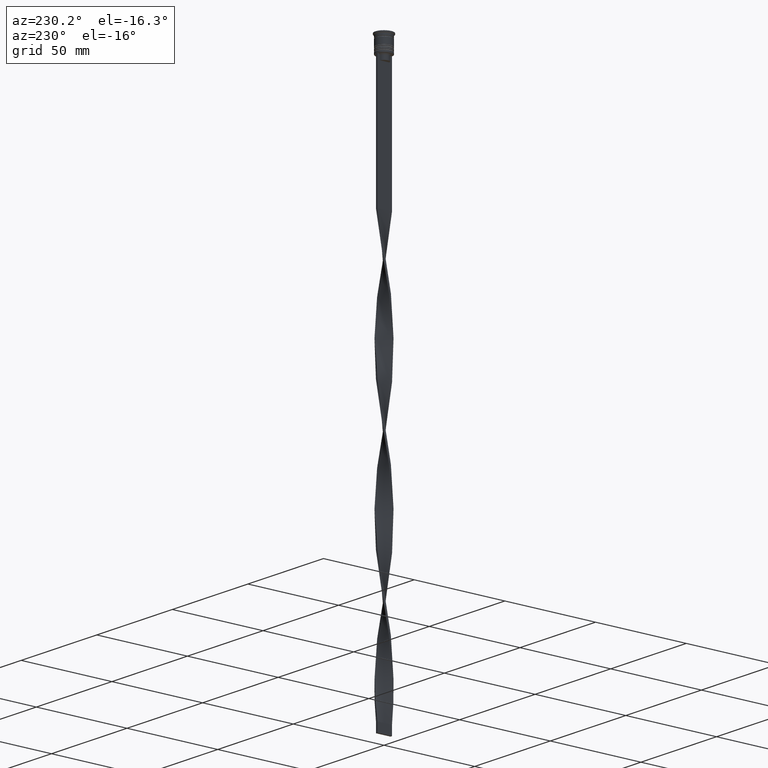
[diagram: clean part render]
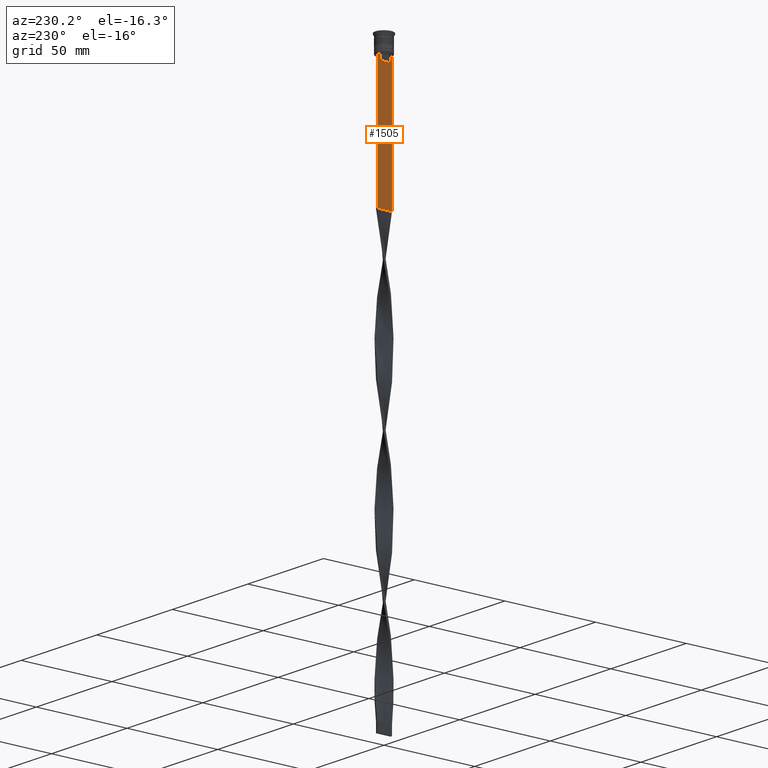
[diagram: same view with one face highlighted and labeled with its STEP entity id]
A machine part, auxiliary view. The second image highlights one B-rep face of the part: STEP entity #1505.
In plain terms, the highlighted planar face has unit normal (-1, 0, 0).
Its self-contained STEP definition (entity closure, byte-faithful):
#30 = B_SPLINE_CURVE_WITH_KNOTS ( 'NONE', 3,
 ( #3575, #568, #2971, #220 ),
 .UNSPECIFIED., .F., .F.,
 ( 4, 4 ),
 ( 0.005378271293598281544, 0.006090816219556000749 ),
 .UNSPECIFIED. ) ;
#66 = EDGE_CURVE ( 'NONE', #527, #2932, #1552, .T. ) ;
#120 = VECTOR ( 'NONE', #2645, 1000.000000000000000 ) ;
#171 = VECTOR ( 'NONE', #515, 1000.000000000000000 ) ;
#177 = CARTESIAN_POINT ( 'NONE',  ( -0.5000000000000000000, 2.602402735934616906, 0.000000000000000000 ) ) ;
#220 = CARTESIAN_POINT ( 'NONE',  ( -0.5000000000000000000, 2.602402735934616906, -10.00000000000000178 ) ) ;
#257 = ORIENTED_EDGE ( 'NONE', *, *, #2436, .F. ) ;
#471 = EDGE_CURVE ( 'NONE', #2932, #1119, #1212, .T. ) ;
#512 = CARTESIAN_POINT ( 'NONE',  ( -0.5000000000000000000, -2.602402735934616906, -10.00000000000000178 ) ) ;
#515 = DIRECTION ( 'NONE',  ( 0.000000000000000000, -1.000000000000000000, 0.000000000000000000 ) ) ;
#527 = VERTEX_POINT ( 'NONE', #665 ) ;
#568 = CARTESIAN_POINT ( 'NONE',  ( -0.5000000000000000000, 2.941047749529104749, -9.666873766989334982 ) ) ;
#665 = CARTESIAN_POINT ( 'NONE',  ( -0.5000000000000000000, -2.602402735934616906, -12.50000000000000000 ) ) ;
#761 = VERTEX_POINT ( 'NONE', #1804 ) ;
#822 = CARTESIAN_POINT ( 'NONE',  ( -0.5000000000000000000, -2.941045828809988549, -9.666875663357577864 ) ) ;
#913 = EDGE_CURVE ( 'NONE', #1697, #2857, #1912, .T. ) ;
#955 = ORIENTED_EDGE ( 'NONE', *, *, #913, .F. ) ;
#999 = AXIS2_PLACEMENT_3D ( 'NONE', #2732, #1525, #1589 ) ;
#1054 = DIRECTION ( 'NONE',  ( 0.000000000000000000, 0.000000000000000000, -1.000000000000000000 ) ) ;
#1058 = CARTESIAN_POINT ( 'NONE',  ( -0.5000000000000000000, -4.000000000000000000, -9.500000000000000000 ) ) ;
#1103 = LINE ( 'NONE', #2716, #2927 ) ;
#1119 = VERTEX_POINT ( 'NONE', #3231 ) ;
#1132 = VECTOR ( 'NONE', #3326, 1000.000000000000000 ) ;
#1212 = B_SPLINE_CURVE_WITH_KNOTS ( 'NONE', 3,
 ( #512, #2348, #822, #3207 ),
 .UNSPECIFIED., .F., .F.,
 ( 4, 4 ),
 ( 0.01295151922336848505, 0.01367164596165163643 ),
 .UNSPECIFIED. ) ;
#1259 = DIRECTION ( 'NONE',  ( 0.000000000000000000, -1.000000000000000000, 0.000000000000000000 ) ) ;
#1427 = CARTESIAN_POINT ( 'NONE',  ( -0.5000000000000000000, 2.649999999999995914, -12.50000000000000000 ) ) ;
#1429 = ORIENTED_EDGE ( 'NONE', *, *, #3871, .F. ) ;
#1505 = ADVANCED_FACE ( 'NONE', ( #2470 ), #3696, .T. ) ;
#1525 = DIRECTION ( 'NONE',  ( -1.000000000000000000, 0.000000000000000000, 0.000000000000000000 ) ) ;
#1536 = CARTESIAN_POINT ( 'NONE',  ( -0.5000000000000000000, 4.000000000000000000, -1.437742251701450202 ) ) ;
#1552 = LINE ( 'NONE', #2647, #3176 ) ;
#1589 = DIRECTION ( 'NONE',  ( 0.000000000000000000, 0.000000000000000000, 1.000000000000000000 ) ) ;
#1663 = ORIENTED_EDGE ( 'NONE', *, *, #3156, .F. ) ;
#1694 = LINE ( 'NONE', #177, #120 ) ;
#1697 = VERTEX_POINT ( 'NONE', #3801 ) ;
#1715 = VERTEX_POINT ( 'NONE', #1058 ) ;
#1756 = VECTOR ( 'NONE', #1259, 1000.000000000000000 ) ;
#1784 = CARTESIAN_POINT ( 'NONE',  ( -0.5000000000000000000, 2.602402735934616906, -12.50000000000000000 ) ) ;
#1804 = CARTESIAN_POINT ( 'NONE',  ( -0.5000000000000000000, 4.000000000000000000, -78.00000000000000000 ) ) ;
#1832 = ORIENTED_EDGE ( 'NONE', *, *, #66, .F. ) ;
#1874 = CARTESIAN_POINT ( 'NONE',  ( -0.5000000000000000000, -4.000000000000000000, -78.00000000000000000 ) ) ;
#1912 = LINE ( 'NONE', #3106, #1756 ) ;
#1963 = LINE ( 'NONE', #1427, #2421 ) ;
#1968 = CARTESIAN_POINT ( 'NONE',  ( -0.5000000000000000000, -4.000000000000000000, -9.500000000000000000 ) ) ;
#2096 = DIRECTION ( 'NONE',  ( 0.000000000000000000, 1.000000000000000000, 0.000000000000000000 ) ) ;
#2133 = EDGE_CURVE ( 'NONE', #1119, #1715, #3873, .T. ) ;
#2345 = DIRECTION ( 'NONE',  ( 0.000000000000000000, -1.000000000000000000, 0.000000000000000000 ) ) ;
#2348 = CARTESIAN_POINT ( 'NONE',  ( -0.5000000000000000000, -2.771864055700302476, -9.833582414266677674 ) ) ;
#2374 = ORIENTED_EDGE ( 'NONE', *, *, #3451, .T. ) ;
#2421 = VECTOR ( 'NONE', #2345, 1000.000000000000000 ) ;
#2422 = EDGE_LOOP ( 'NONE', ( #3104, #955, #2374, #257, #1663, #3486, #3395, #1832, #1429, #3723 ) ) ;
#2436 = EDGE_CURVE ( 'NONE', #2871, #761, #1103, .T. ) ;
#2470 = FACE_OUTER_BOUND ( 'NONE', #2422, .T. ) ;
#2473 = VERTEX_POINT ( 'NONE', #1784 ) ;
#2538 = EDGE_CURVE ( 'NONE', #2857, #3816, #30, .T. ) ;
#2645 = DIRECTION ( 'NONE',  ( 0.000000000000000000, 0.000000000000000000, -1.000000000000000000 ) ) ;
#2647 = CARTESIAN_POINT ( 'NONE',  ( -0.5000000000000000000, -2.602402735934616906, 0.000000000000000000 ) ) ;
#2716 = CARTESIAN_POINT ( 'NONE',  ( -0.5000000000000000000, -4.000000000000000000, -78.00000000000000000 ) ) ;
#2732 = CARTESIAN_POINT ( 'NONE',  ( -0.5000000000000000000, -4.000000000000000000, -1.437742251701450202 ) ) ;
#2857 = VERTEX_POINT ( 'NONE', #3843 ) ;
#2871 = VERTEX_POINT ( 'NONE', #1874 ) ;
#2927 = VECTOR ( 'NONE', #2096, 1000.000000000000000 ) ;
#2932 = VERTEX_POINT ( 'NONE', #3994 ) ;
#2966 = DIRECTION ( 'NONE',  ( -0.000000000000000000, -0.000000000000000000, 1.000000000000000000 ) ) ;
#2971 = CARTESIAN_POINT ( 'NONE',  ( -0.5000000000000000000, 2.771866350855961336, -9.833580160334840059 ) ) ;
#3104 = ORIENTED_EDGE ( 'NONE', *, *, #2538, .F. ) ;
#3106 = CARTESIAN_POINT ( 'NONE',  ( -0.5000000000000000000, -4.000000000000000000, -9.500000000000000000 ) ) ;
#3130 = VECTOR ( 'NONE', #1054, 1000.000000000000000 ) ;
#3156 = EDGE_CURVE ( 'NONE', #1715, #2871, #3170, .T. ) ;
#3170 = LINE ( 'NONE', #3797, #3130 ) ;
#3176 = VECTOR ( 'NONE', #2966, 1000.000000000000000 ) ;
#3207 = CARTESIAN_POINT ( 'NONE',  ( -0.5000000000000000000, -3.110064308016796897, -9.500000000000000000 ) ) ;
#3231 = CARTESIAN_POINT ( 'NONE',  ( -0.5000000000000000000, -3.110064308016796897, -9.500000000000000000 ) ) ;
#3326 = DIRECTION ( 'NONE',  ( 0.000000000000000000, 0.000000000000000000, -1.000000000000000000 ) ) ;
#3395 = ORIENTED_EDGE ( 'NONE', *, *, #471, .F. ) ;
#3404 = EDGE_CURVE ( 'NONE', #3816, #2473, #1694, .T. ) ;
#3451 = EDGE_CURVE ( 'NONE', #1697, #761, #3680, .T. ) ;
#3486 = ORIENTED_EDGE ( 'NONE', *, *, #2133, .F. ) ;
#3575 = CARTESIAN_POINT ( 'NONE',  ( -0.5000000000000000000, 3.110064308016796897, -9.500000000000000000 ) ) ;
#3680 = LINE ( 'NONE', #1536, #1132 ) ;
#3696 = PLANE ( 'NONE',  #999 ) ;
#3723 = ORIENTED_EDGE ( 'NONE', *, *, #3404, .F. ) ;
#3797 = CARTESIAN_POINT ( 'NONE',  ( -0.5000000000000000000, -4.000000000000000000, -1.437742251701450202 ) ) ;
#3801 = CARTESIAN_POINT ( 'NONE',  ( -0.5000000000000000000, 4.000000000000000000, -9.500000000000000000 ) ) ;
#3816 = VERTEX_POINT ( 'NONE', #3865 ) ;
#3843 = CARTESIAN_POINT ( 'NONE',  ( -0.5000000000000000000, 3.110064308016796897, -9.500000000000000000 ) ) ;
#3865 = CARTESIAN_POINT ( 'NONE',  ( -0.5000000000000000000, 2.602402735934616906, -10.00000000000000178 ) ) ;
#3871 = EDGE_CURVE ( 'NONE', #2473, #527, #1963, .T. ) ;
#3873 = LINE ( 'NONE', #1968, #171 ) ;
#3994 = CARTESIAN_POINT ( 'NONE',  ( -0.5000000000000000000, -2.602402735934616906, -10.00000000000000178 ) ) ;